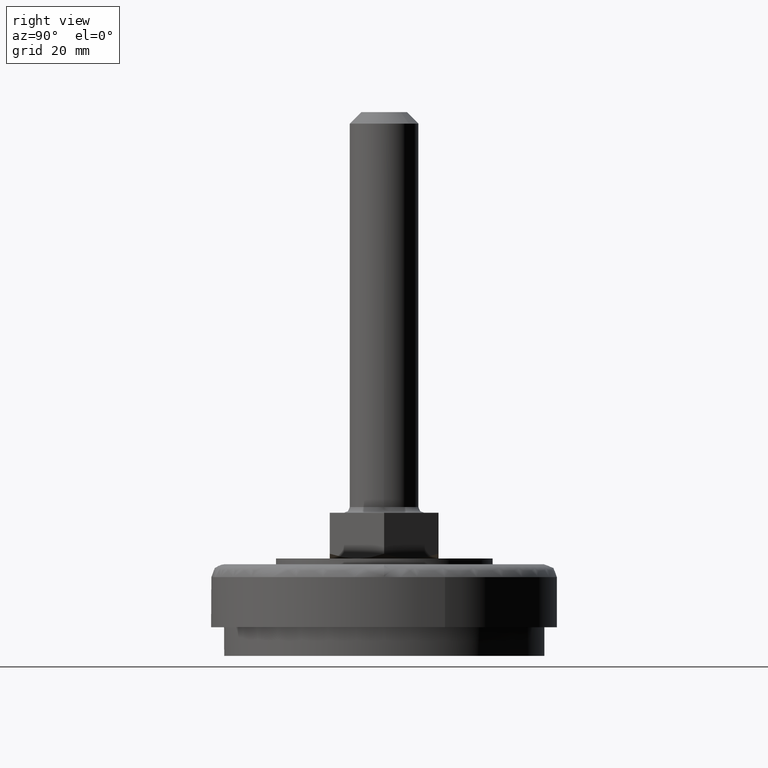
[diagram: clean part render]
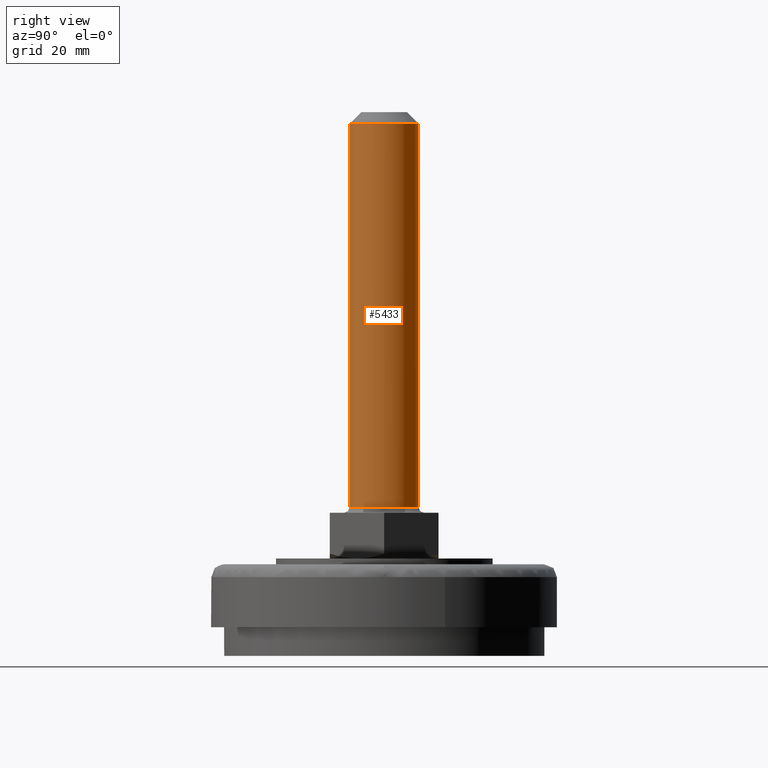
[diagram: same view with one face highlighted and labeled with its STEP entity id]
A machine part, right view. The second image highlights one B-rep face of the part: STEP entity #5433.
In plain terms, the highlighted face is a freeform B-spline surface patch.
Its self-contained STEP definition (entity closure, byte-faithful):
#5170=CARTESIAN_POINT('',(0.052359213515298,5.999771538451999,92.999999999928448));
#5171=VERTEX_POINT('',#5170);
#5177=CARTESIAN_POINT('',(-6.0,0.0,93.0));
#5178=VERTEX_POINT('',#5177);
#5179=CARTESIAN_POINT('',(-6.0,0.0,93.0));
#5180=CARTESIAN_POINT('',(-6.0,6.0,93.0));
#5181=CARTESIAN_POINT('',(0.0,6.0,93.0));
#5182=CARTESIAN_POINT('',(0.026180105448670,6.0,93.0));
#5183=CARTESIAN_POINT('',(0.052359213515298,5.999771538451999,92.999999999928448));
#5191=(BOUNDED_CURVE()B_SPLINE_CURVE(2,(#5179,#5180,#5181,#5182,#5183),.UNSPECIFIED.,.F.,.U.)B_SPLINE_CURVE_WITH_KNOTS((3,2,3),(0.500000000000000,0.750000000000000,0.751539894365780),.UNSPECIFIED.)CURVE()GEOMETRIC_REPRESENTATION_ITEM()RATIONAL_B_SPLINE_CURVE((1.0,0.707106781186548,1.0,0.998195901530296,0.996414028029143))REPRESENTATION_ITEM(''));
#5192=EDGE_CURVE('',#5178,#5171,#5191,.T.);
#5194=CARTESIAN_POINT('',(-3.921221961037451,-4.541367451800023,93.0));
#5195=VERTEX_POINT('',#5194);
#5196=CARTESIAN_POINT('',(-3.921221961037451,-4.541367451800023,93.0));
#5197=CARTESIAN_POINT('',(-6.0,-2.746456516930187,93.000000000000014));
#5198=CARTESIAN_POINT('',(-6.0,0.0,93.0));
#5206=(BOUNDED_CURVE()B_SPLINE_CURVE(2,(#5196,#5197,#5198),.UNSPECIFIED.,.F.,.U.)B_SPLINE_CURVE_WITH_KNOTS((3,3),(0.363957582981565,0.500000000000000),.UNSPECIFIED.)CURVE()GEOMETRIC_REPRESENTATION_ITEM()RATIONAL_B_SPLINE_CURVE((0.854696236254275,0.840616394337234,1.0))REPRESENTATION_ITEM(''));
#5207=EDGE_CURVE('',#5195,#5178,#5206,.T.);
#5209=CARTESIAN_POINT('',(-0.157061689900366,-5.997943949851951,93.0));
#5210=VERTEX_POINT('',#5209);
#5224=CARTESIAN_POINT('',(6.0,0.0,93.0));
#5225=VERTEX_POINT('',#5224);
#5226=CARTESIAN_POINT('',(6.0,0.0,93.0));
#5227=CARTESIAN_POINT('',(6.0,-6.0,93.0));
#5228=CARTESIAN_POINT('',(0.0,-6.0,93.0));
#5229=CARTESIAN_POINT('',(-0.078544302562165,-5.999999999999999,92.999999999999986));
#5230=CARTESIAN_POINT('',(-0.157061689900366,-5.997943949851951,93.0));
#5238=(BOUNDED_CURVE()B_SPLINE_CURVE(2,(#5226,#5227,#5228,#5229,#5230),.UNSPECIFIED.,.F.,.U.)B_SPLINE_CURVE_WITH_KNOTS((3,2,3),(0.0,0.250000000000000,0.254603306662103),.UNSPECIFIED.)CURVE()GEOMETRIC_REPRESENTATION_ITEM()RATIONAL_B_SPLINE_CURVE((1.0,0.707106781186548,1.0,0.994606890778205,0.989412390641292))REPRESENTATION_ITEM(''));
#5239=EDGE_CURVE('',#5225,#5210,#5238,.T.);
#5241=CARTESIAN_POINT('',(4.137835456710805,4.344918610651726,92.999999999999929));
#5242=VERTEX_POINT('',#5241);
#5243=CARTESIAN_POINT('',(4.137835456710806,4.344918610651726,92.999999999999929));
#5244=CARTESIAN_POINT('',(6.000000000000002,2.571506686527826,93.0));
#5245=CARTESIAN_POINT('',(6.0,0.0,93.0));
#5253=(BOUNDED_CURVE()B_SPLINE_CURVE(2,(#5243,#5244,#5245),.UNSPECIFIED.,.F.,.U.)B_SPLINE_CURVE_WITH_KNOTS((3,3),(0.871317023850006,1.0),.UNSPECIFIED.)CURVE()GEOMETRIC_REPRESENTATION_ITEM()RATIONAL_B_SPLINE_CURVE((0.853680523245744,0.849238515635734,1.0))REPRESENTATION_ITEM(''));
#5254=EDGE_CURVE('',#5242,#5225,#5253,.T.);
#5292=CARTESIAN_POINT('',(0.052359213515298,5.999771538451999,92.999999999928448));
#5293=CARTESIAN_POINT('',(2.421876689036237,5.979093072229420,93.0));
#5294=CARTESIAN_POINT('',(4.137835456710805,4.344918610651727,92.999999999999929));
#5302=(BOUNDED_CURVE()B_SPLINE_CURVE(2,(#5292,#5293,#5294),.UNSPECIFIED.,.F.,.U.)B_SPLINE_CURVE_WITH_KNOTS((3,3),(0.751539894365780,0.871317023850006),.UNSPECIFIED.)CURVE()GEOMETRIC_REPRESENTATION_ITEM()RATIONAL_B_SPLINE_CURVE((0.996414028029143,0.857815109937724,0.853680523245744))REPRESENTATION_ITEM(''));
#5303=EDGE_CURVE('',#5171,#5242,#5302,.T.);
#5309=CARTESIAN_POINT('',(-3.921224227828179,-4.541365494550433,94.675000000029016));
#5310=CARTESIAN_POINT('',(-6.072339594728697,-2.683993366351173,94.675000000029002));
#5311=CARTESIAN_POINT('',(-5.997943949853342,0.157061689847241,94.675000000029016));
#5312=CARTESIAN_POINT('',(-5.840882260006102,6.155005639700584,94.675000000029002));
#5313=CARTESIAN_POINT('',(0.157061689847241,5.997943949853342,94.675000000029016));
#5314=CARTESIAN_POINT('',(6.155005639700584,5.840882260006102,94.675000000029002));
#5315=CARTESIAN_POINT('',(5.997943949853342,-0.157061689847241,94.675000000029016));
#5316=CARTESIAN_POINT('',(5.840882260006102,-6.155005639700584,94.675000000029002));
#5317=CARTESIAN_POINT('',(-0.157061689847241,-5.997943949853342,94.675000000029016));
#5318=CARTESIAN_POINT('',(-3.921224227828179,-4.541365494550433,24.283124998810486));
#5319=CARTESIAN_POINT('',(-6.072339594728697,-2.683993366351173,24.283124998810489));
#5320=CARTESIAN_POINT('',(-5.997943949853342,0.157061689847241,24.283124998810489));
#5321=CARTESIAN_POINT('',(-5.840882260006102,6.155005639700584,24.283124998810486));
#5322=CARTESIAN_POINT('',(0.157061689847241,5.997943949853342,24.283124998810489));
#5323=CARTESIAN_POINT('',(6.155005639700584,5.840882260006102,24.283124998810486));
#5324=CARTESIAN_POINT('',(5.997943949853342,-0.157061689847241,24.283124998810489));
#5325=CARTESIAN_POINT('',(5.840882260006102,-6.155005639700584,24.283124998810486));
#5326=CARTESIAN_POINT('',(-0.157061689847241,-5.997943949853342,24.283124998810489));
#5334=(BOUNDED_SURFACE()B_SPLINE_SURFACE(2,1,((#5309,#5318),(#5310,#5319),(#5311,#5320),(#5312,#5321),(#5313,#5322),(#5314,#5323),(#5315,#5324),(#5316,#5325),(#5317,#5326)),.UNSPECIFIED.,.F.,.F.,.U.)B_SPLINE_SURFACE_WITH_KNOTS((3,2,2,2,3),(2,2),(0.0,5.567030278294396,15.508155775248669,25.449281272202949,35.390406769157231),(0.0,70.391875001218523),.UNSPECIFIED.)GEOMETRIC_REPRESENTATION_ITEM()RATIONAL_B_SPLINE_SURFACE(((0.855662221768731,0.855662221768731),(0.835979797464467,0.835979797464467),(1.0,1.0),(0.707106781186548,0.707106781186548),(1.0,1.0),(0.707106781186548,0.707106781186548),(1.0,1.0),(0.707106781186548,0.707106781186548),(1.0,1.0)))REPRESENTATION_ITEM('')SURFACE());
#5335=CARTESIAN_POINT('',(-6.0,0.0,26.0));
#5336=VERTEX_POINT('',#5335);
#5337=CARTESIAN_POINT('',(-3.921221582740972,-4.541367778437920,25.999999999999989));
#5338=VERTEX_POINT('',#5337);
#5339=CARTESIAN_POINT('',(-6.0,0.0,26.0));
#5340=CARTESIAN_POINT('',(-6.0,-2.746456819191652,26.000000000000011));
#5341=CARTESIAN_POINT('',(-3.921221582740972,-4.541367778437919,25.999999999999986));
#5349=(BOUNDED_CURVE()B_SPLINE_CURVE(2,(#5339,#5340,#5341),.UNSPECIFIED.,.F.,.U.)B_SPLINE_CURVE_WITH_KNOTS((3,3),(0.500000000000000,0.636042429604276),.UNSPECIFIED.)CURVE()GEOMETRIC_REPRESENTATION_ITEM()RATIONAL_B_SPLINE_CURVE((1.0,0.840616379592004,0.854696238859444))REPRESENTATION_ITEM(''));
#5350=EDGE_CURVE('',#5336,#5338,#5349,.T.);
#5351=ORIENTED_EDGE('',*,*,#5350,.T.);
#5352=CARTESIAN_POINT('',(-3.921221961037451,-4.541367451800023,93.0));
#5353=CARTESIAN_POINT('',(-3.921221582740972,-4.541367778437920,25.999999999999989));
#5354=QUASI_UNIFORM_CURVE('',1,(#5352,#5353),.UNSPECIFIED.,.F.,.U.);
#5355=EDGE_CURVE('',#5195,#5338,#5354,.T.);
#5356=ORIENTED_EDGE('',*,*,#5355,.F.);
#5357=ORIENTED_EDGE('',*,*,#5207,.T.);
#5358=ORIENTED_EDGE('',*,*,#5192,.T.);
#5359=ORIENTED_EDGE('',*,*,#5303,.T.);
#5360=ORIENTED_EDGE('',*,*,#5254,.T.);
#5361=ORIENTED_EDGE('',*,*,#5239,.T.);
#5362=CARTESIAN_POINT('',(-0.157061689876674,-5.997943949852573,26.0));
#5363=VERTEX_POINT('',#5362);
#5364=CARTESIAN_POINT('',(-0.157061689900366,-5.997943949851951,93.0));
#5365=CARTESIAN_POINT('',(-0.157061689876674,-5.997943949852573,26.0));
#5366=QUASI_UNIFORM_CURVE('',1,(#5364,#5365),.UNSPECIFIED.,.F.,.U.);
#5367=EDGE_CURVE('',#5210,#5363,#5366,.T.);
#5368=ORIENTED_EDGE('',*,*,#5367,.T.);
#5369=CARTESIAN_POINT('',(5.999526265222624,-0.075396239321726,25.999999998844689));
#5370=VERTEX_POINT('',#5369);
#5371=CARTESIAN_POINT('',(-0.157061689876674,-5.997943949852573,25.999999999999996));
#5372=CARTESIAN_POINT('',(-0.078544302538460,-6.000000000000001,26.000000000000004));
#5373=CARTESIAN_POINT('',(0.0,-6.0,26.0));
#5374=CARTESIAN_POINT('',(5.925071579401169,-6.0,25.999999999999996));
#5375=CARTESIAN_POINT('',(5.999526265222624,-0.075396239321726,25.999999998844686));
#5383=(BOUNDED_CURVE()B_SPLINE_CURVE(2,(#5371,#5372,#5373,#5374,#5375),.UNSPECIFIED.,.F.,.U.)B_SPLINE_CURVE_WITH_KNOTS((3,2,3),(0.745396693339279,0.750000000000000,0.997784295920460),.UNSPECIFIED.)CURVE()GEOMETRIC_REPRESENTATION_ITEM()RATIONAL_B_SPLINE_CURVE((0.989412390644410,0.994606890779824,1.0,0.709702639985725,0.994854295641094))REPRESENTATION_ITEM(''));
#5384=EDGE_CURVE('',#5363,#5370,#5383,.T.);
#5385=ORIENTED_EDGE('',*,*,#5384,.T.);
#5386=CARTESIAN_POINT('',(6.0,0.0,26.0));
#5387=VERTEX_POINT('',#5386);
#5388=CARTESIAN_POINT('',(5.999526265222624,-0.075396239321726,25.999999998844689));
#5389=CARTESIAN_POINT('',(5.999999999999999,-0.037699607972951,25.999999999999996));
#5390=CARTESIAN_POINT('',(6.0,0.0,26.0));
#5398=(BOUNDED_CURVE()B_SPLINE_CURVE(2,(#5388,#5389,#5390),.UNSPECIFIED.,.F.,.U.)B_SPLINE_CURVE_WITH_KNOTS((3,3),(0.997784295920461,1.0),.UNSPECIFIED.)CURVE()GEOMETRIC_REPRESENTATION_ITEM()RATIONAL_B_SPLINE_CURVE((0.994854295641096,0.997404141200823,1.0))REPRESENTATION_ITEM(''));
#5399=EDGE_CURVE('',#5370,#5387,#5398,.T.);
#5400=ORIENTED_EDGE('',*,*,#5399,.T.);
#5401=CARTESIAN_POINT('',(0.418399613043742,5.985394035801221,25.999999998840210));
#5402=VERTEX_POINT('',#5401);
#5403=CARTESIAN_POINT('',(6.0,0.0,26.0));
#5404=CARTESIAN_POINT('',(6.000000000000001,5.595220889450608,26.000000000000007));
#5405=CARTESIAN_POINT('',(0.418399613043742,5.985394035801221,25.999999998840206));
#5413=(BOUNDED_CURVE()B_SPLINE_CURVE(2,(#5403,#5404,#5405),.UNSPECIFIED.,.F.,.U.)B_SPLINE_CURVE_WITH_KNOTS((3,3),(0.0,0.237833680582025),.UNSPECIFIED.)CURVE()GEOMETRIC_REPRESENTATION_ITEM()RATIONAL_B_SPLINE_CURVE((1.0,0.721360511008321,0.972879863795727))REPRESENTATION_ITEM(''));
#5414=EDGE_CURVE('',#5387,#5402,#5413,.T.);
#5415=ORIENTED_EDGE('',*,*,#5414,.T.);
#5416=CARTESIAN_POINT('',(0.418399613043742,5.985394035801221,25.999999998840210));
#5417=CARTESIAN_POINT('',(0.209454799218698,6.000000000000001,26.000000000000004));
#5418=CARTESIAN_POINT('',(0.0,6.0,26.0));
#5419=CARTESIAN_POINT('',(-6.0,6.0,26.000000000000004));
#5420=CARTESIAN_POINT('',(-6.0,0.0,26.0));
#5428=(BOUNDED_CURVE()B_SPLINE_CURVE(2,(#5416,#5417,#5418,#5419,#5420),.UNSPECIFIED.,.F.,.U.)B_SPLINE_CURVE_WITH_KNOTS((3,2,3),(0.237833680582025,0.250000000000000,0.500000000000000),.UNSPECIFIED.)CURVE()GEOMETRIC_REPRESENTATION_ITEM()RATIONAL_B_SPLINE_CURVE((0.972879863795727,0.985746270178227,1.0,0.707106781186548,1.0))REPRESENTATION_ITEM(''));
#5429=EDGE_CURVE('',#5402,#5336,#5428,.T.);
#5430=ORIENTED_EDGE('',*,*,#5429,.T.);
#5431=EDGE_LOOP('',(#5351,#5356,#5357,#5358,#5359,#5360,#5361,#5368,#5385,#5400,#5415,#5430));
#5432=FACE_OUTER_BOUND('',#5431,.T.);
#5433=ADVANCED_FACE('',(#5432),#5334,.T.);